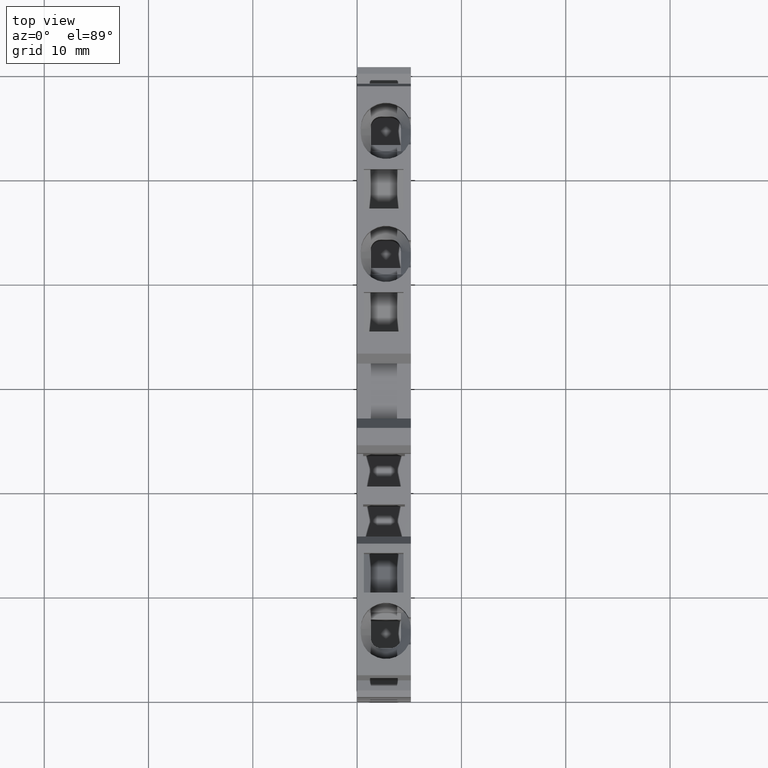
[diagram: clean part render]
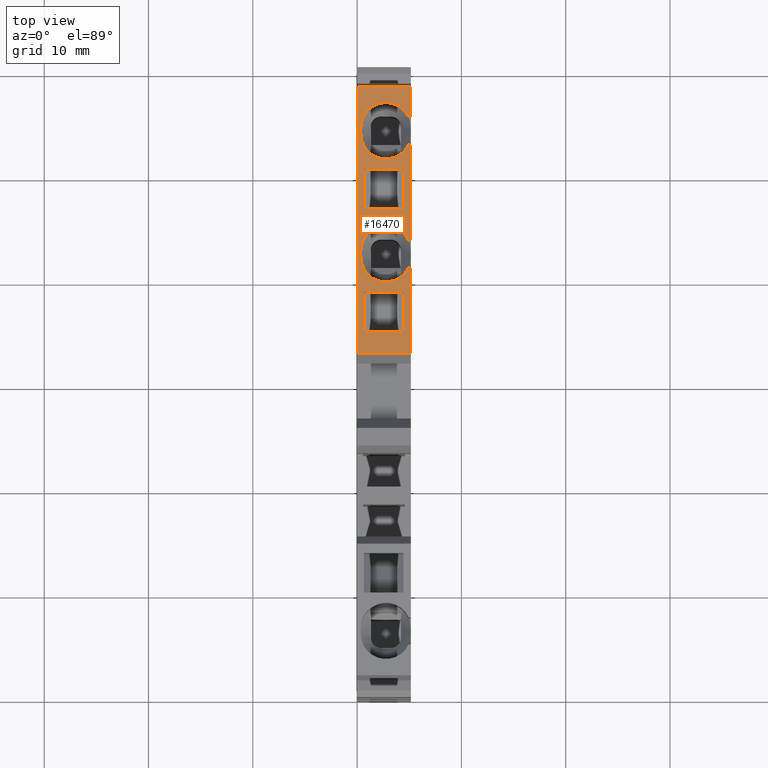
[diagram: same view with one face highlighted and labeled with its STEP entity id]
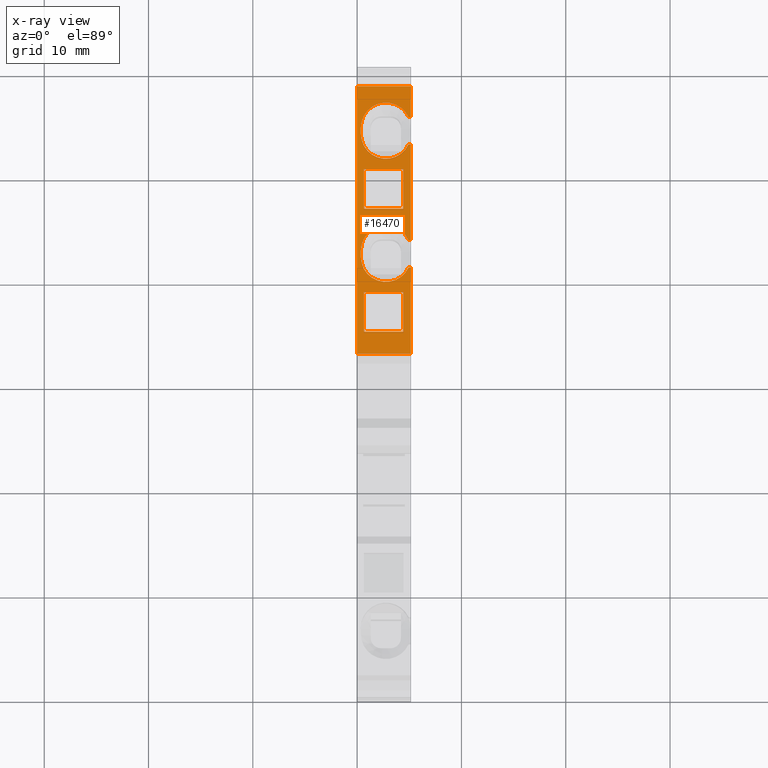
[diagram: x-ray of the same camera — body ghosted, the highlighted face saturated]
A machine part, top view. The second image highlights one B-rep face of the part: STEP entity #16470.
The next image is the same camera in x-ray: the body ghosted, the highlighted face saturated — about 0% of this face is hidden behind the body in this view.
In plain terms, the highlighted planar face has unit normal (0, 0, 1).
Its self-contained STEP definition (entity closure, byte-faithful):
#200=CARTESIAN_POINT('',(16.3321674513997,-9.15000000000321,
52.9700000000347));
#210=VERTEX_POINT('',#200);
#240=CARTESIAN_POINT('',(-30.6958559619301,-9.15000000000321,
52.9700000000335));
#250=DIRECTION('',(-1.,0.,-2.55698240358981E-14));
#260=VECTOR('',#250,1.);
#270=LINE('',#240,#260);
#280=CARTESIAN_POINT('',(12.5321672216741,-9.15000000000321,
52.9700000000346));
#290=VERTEX_POINT('',#280);
#300=EDGE_CURVE('',#210,#290,#270,.T.);
#11460=CARTESIAN_POINT('',(18.7071672216757,-9.1500000000032,53.67));
#11470=VERTEX_POINT('',#11460);
#11500=CARTESIAN_POINT('',(18.7071672216757,-9.14999999998433,53.67));
#11510=DIRECTION('',(-1.32730580468867E-25,1.13159598700756E-12,1.));
#11520=VECTOR('',#11510,1.);
#11530=LINE('',#11500,#11520);
#11540=CARTESIAN_POINT('',(18.7071672216758,-9.1500000000032,
53.4517424229272));
#11550=VERTEX_POINT('',#11540);
#11560=EDGE_CURVE('',#11550,#11470,#11530,.T.);
#14390=CARTESIAN_POINT('',(22.5369482988433,-9.15000000000321,
49.803985858166));
#14400=DIRECTION('',(0.,1.,-0.));
#14410=DIRECTION('',(-1.,0.,0.));
#14420=AXIS2_PLACEMENT_3D('',#14390,#14400,#14410);
#14430=PLANE('',#14420);
#14440=CARTESIAN_POINT('',(-30.6958559619301,-9.15000000000321,
49.1700000001247));
#14450=DIRECTION('',(-1.,0.,2.75113265502114E-12));
#14460=VECTOR('',#14450,1.);
#14470=LINE('',#14440,#14460);
#14480=CARTESIAN_POINT('',(28.1321677601177,-9.1500000000032,
49.1699999999986));
#14490=VERTEX_POINT('',#14480);
#14500=CARTESIAN_POINT('',(24.3321675303923,-9.1500000000032,
49.1699999999987));
#14510=VERTEX_POINT('',#14500);
#14520=EDGE_CURVE('',#14490,#14510,#14470,.T.);
#14530=ORIENTED_EDGE('',*,*,#14520,.F.);
#14540=CARTESIAN_POINT('',(24.3321675304046,-9.1500000000032,53.67));
#14550=DIRECTION('',(-2.75115697116647E-12,0.,-1.));
#14560=VECTOR('',#14550,1.);
#14570=LINE('',#14540,#14560);
#14580=CARTESIAN_POINT('',(24.3321672216741,-9.15000000000321,
52.9700000000338));
#14590=VERTEX_POINT('',#14580);
#14600=EDGE_CURVE('',#14590,#14510,#14570,.T.);
#14610=ORIENTED_EDGE('',*,*,#14600,.T.);
#14620=CARTESIAN_POINT('',(-30.6958559619301,-9.15000000000321,
52.9700000000324));
#14630=DIRECTION('',(-1.,0.,-2.55698240358981E-14));
#14640=VECTOR('',#14630,1.);
#14650=LINE('',#14620,#14640);
#14660=CARTESIAN_POINT('',(28.1321674513997,-9.15000000000321,
52.9700000000339));
#14670=VERTEX_POINT('',#14660);
#14680=EDGE_CURVE('',#14670,#14590,#14650,.T.);
#14690=ORIENTED_EDGE('',*,*,#14680,.T.);
#14700=CARTESIAN_POINT('',(28.1321674513997,-9.1499999999855,53.67));
#14710=DIRECTION('',(0.,6.94583279713799E-15,1.));
#14720=VECTOR('',#14710,1.);
#14730=LINE('',#14700,#14720);
#14740=EDGE_CURVE('',#14490,#14670,#14730,.T.);
#14750=ORIENTED_EDGE('',*,*,#14740,.T.);
#14760=EDGE_LOOP('',(#14750,#14690,#14610,#14530));
#14770=FACE_BOUND('',#14760,.T.);
#14780=CARTESIAN_POINT('',(16.3321674513997,-9.14999999998203,53.67));
#14790=DIRECTION('',(-2.22853205724936E-28,6.94583279713799E-15,1.));
#14800=VECTOR('',#14790,1.);
#14810=LINE('',#14780,#14800);
#14820=CARTESIAN_POINT('',(16.3321674513997,-9.15000000000321,
49.1699999999989));
#14830=VERTEX_POINT('',#14820);
#14840=EDGE_CURVE('',#14830,#210,#14810,.T.);
#14850=ORIENTED_EDGE('',*,*,#14840,.T.);
#14860=CARTESIAN_POINT('',(-30.6958559619301,-9.15000000000321,
49.170000000093));
#14870=DIRECTION('',(-1.,0.,2.75113265502114E-12));
#14880=VECTOR('',#14870,1.);
#14890=LINE('',#14860,#14880);
#14900=CARTESIAN_POINT('',(12.5321672216741,-9.15000000000321,
49.169999999999));
#14910=VERTEX_POINT('',#14900);
#14920=EDGE_CURVE('',#14830,#14910,#14890,.T.);
#14930=ORIENTED_EDGE('',*,*,#14920,.F.);
#14940=CARTESIAN_POINT('',(12.5321672216611,-9.1500000000032,53.67));
#14950=DIRECTION('',(-2.75115697116647E-12,0.,-1.));
#14960=VECTOR('',#14950,1.);
#14970=LINE('',#14940,#14960);
#14980=EDGE_CURVE('',#290,#14910,#14970,.T.);
#14990=ORIENTED_EDGE('',*,*,#14980,.T.);
#15000=ORIENTED_EDGE('',*,*,#300,.T.);
#15010=EDGE_LOOP('',(#15000,#14990,#14930,#14850));
#15020=FACE_BOUND('',#15010,.T.);
#15030=CARTESIAN_POINT('',(19.7071672216757,-9.15000000000257,51.27));
#15040=DIRECTION('',(1.17239551400417E-13,-1.,0.));
#15050=DIRECTION('',(-1.,-1.18335896637234E-13,0.));
#15060=AXIS2_PLACEMENT_3D('',#15030,#15040,#15050);
#15070=CIRCLE('',#15060,2.60000000000001);
#15080=CARTESIAN_POINT('',(17.1144192216756,-9.1500000000032,
51.464056199323));
#15090=VERTEX_POINT('',#15080);
#15100=CARTESIAN_POINT('',(17.1144192216756,-9.1500000000032,
51.0759438006769));
#15110=VERTEX_POINT('',#15100);
#15120=EDGE_CURVE('',#15090,#15110,#15070,.T.);
#15130=ORIENTED_EDGE('',*,*,#15120,.T.);
#15140=CARTESIAN_POINT('',(17.1144192216756,-9.15000000000321,
47.4879520538782));
#15150=DIRECTION('',(0.,0.,1.));
#15160=VECTOR('',#15150,1.);
#15170=LINE('',#15140,#15160);
#15180=EDGE_CURVE('',#15110,#15090,#15170,.T.);
#15190=ORIENTED_EDGE('',*,*,#15180,.T.);
#15200=EDGE_LOOP('',(#15190,#15130));
#15210=FACE_BOUND('',#15200,.T.);
#15220=CARTESIAN_POINT('',(-30.6958559619301,-9.15000000000321,48.52));
#15230=DIRECTION('',(1.,0.,0.));
#15240=VECTOR('',#15230,1.);
#15250=LINE('',#15220,#15240);
#15260=CARTESIAN_POINT('',(10.4418215966526,-9.15000000000316,48.52));
#15270=VERTEX_POINT('',#15260);
#15280=CARTESIAN_POINT('',(36.0719729923297,-9.15000000000321,48.52));
#15290=VERTEX_POINT('',#15280);
#15300=EDGE_CURVE('',#15270,#15290,#15250,.T.);
#15310=ORIENTED_EDGE('',*,*,#15300,.F.);
#15320=CARTESIAN_POINT('',(36.0719729923297,-9.1500000000032,53.67));
#15330=DIRECTION('',(0.,0.,1.));
#15340=VECTOR('',#15330,1.);
#15350=LINE('',#15320,#15340);
#15360=CARTESIAN_POINT('',(36.0719729923297,-9.15000000000321,53.67));
#15370=VERTEX_POINT('',#15360);
#15380=EDGE_CURVE('',#15290,#15370,#15350,.T.);
#15390=ORIENTED_EDGE('',*,*,#15380,.F.);
#15400=CARTESIAN_POINT('',(-30.6958559619301,-9.15000000000321,53.67));
#15410=DIRECTION('',(-1.,0.,0.));
#15420=VECTOR('',#15410,1.);
#15430=LINE('',#15400,#15420);
#15440=CARTESIAN_POINT('',(33.1071672216757,-9.15000000000321,53.67));
#15450=VERTEX_POINT('',#15440);
#15460=EDGE_CURVE('',#15370,#15450,#15430,.T.);
#15470=ORIENTED_EDGE('',*,*,#15460,.F.);
#15480=CARTESIAN_POINT('',(33.1071672216757,-9.14999999998016,53.67));
#15490=DIRECTION('',(1.32730580468867E-25,-1.13159598700756E-12,-1.));
#15500=VECTOR('',#15490,1.);
#15510=LINE('',#15480,#15500);
#15520=CARTESIAN_POINT('',(33.1071672216759,-9.1500000000032,
53.4517424229269));
#15530=VERTEX_POINT('',#15520);
#15540=EDGE_CURVE('',#15450,#15530,#15510,.T.);
#15550=ORIENTED_EDGE('',*,*,#15540,.F.);
#15560=CARTESIAN_POINT('',(32.1071672216754,-9.14999999998305,51.27));
#15570=DIRECTION('',(0.,1.,0.));
#15580=DIRECTION('',(1.,0.,0.));
#15590=AXIS2_PLACEMENT_3D('',#15560,#15570,#15580);
#15600=CIRCLE('',#15590,2.4);
#15610=CARTESIAN_POINT('',(32.1071672216754,-9.1500000000032,48.87));
#15620=VERTEX_POINT('',#15610);
#15630=EDGE_CURVE('',#15530,#15620,#15600,.T.);
#15640=ORIENTED_EDGE('',*,*,#15630,.F.);
#15650=CARTESIAN_POINT('',(-30.6958559619292,-9.14999999999617,
48.8699999999999));
#15660=DIRECTION('',(1.,1.65797930939959E-13,7.49400541621981E-16));
#15670=VECTOR('',#15660,1.);
#15680=LINE('',#15650,#15670);
#15690=CARTESIAN_POINT('',(31.5071672216758,-9.1500000000032,48.87));
#15700=VERTEX_POINT('',#15690);
#15710=EDGE_CURVE('',#15700,#15620,#15680,.T.);
#15720=ORIENTED_EDGE('',*,*,#15710,.T.);
#15730=CARTESIAN_POINT('',(31.5071672216757,-9.14999999998314,51.27));
#15740=DIRECTION('',(1.17239551400417E-13,-1.,0.));
#15750=DIRECTION('',(1.,1.17239551400417E-13,0.));
#15760=AXIS2_PLACEMENT_3D('',#15730,#15740,#15750);
#15770=CIRCLE('',#15760,2.4);
#15780=CARTESIAN_POINT('',(30.5071674767927,-9.15000000000332,
53.4517425398598));
#15790=VERTEX_POINT('',#15780);
#15800=EDGE_CURVE('',#15790,#15700,#15770,.T.);
#15810=ORIENTED_EDGE('',*,*,#15800,.T.);
#15820=CARTESIAN_POINT('',(30.5071672216757,-9.14999999998059,53.67));
#15830=DIRECTION('',(-1.32730580468867E-25,1.13159598700756E-12,1.));
#15840=VECTOR('',#15830,1.);
#15850=LINE('',#15820,#15840);
#15860=CARTESIAN_POINT('',(30.5071672216757,-9.15000000000328,53.67));
#15870=VERTEX_POINT('',#15860);
#15880=EDGE_CURVE('',#15790,#15870,#15850,.T.);
#15890=ORIENTED_EDGE('',*,*,#15880,.F.);
#15900=CARTESIAN_POINT('',(-30.7553307158937,-9.15000000000321,53.67));
#15910=DIRECTION('',(-1.,0.,0.));
#15920=VECTOR('',#15910,1.);
#15930=LINE('',#15900,#15920);
#15940=CARTESIAN_POINT('',(21.3071672216757,-9.15000000000321,53.67));
#15950=VERTEX_POINT('',#15940);
#15960=EDGE_CURVE('',#15870,#15950,#15930,.T.);
#15970=ORIENTED_EDGE('',*,*,#15960,.F.);
#15980=CARTESIAN_POINT('',(21.3071672216757,-9.1499999999839,53.67));
#15990=DIRECTION('',(1.32730580468867E-25,-1.13159598700756E-12,-1.));
#16000=VECTOR('',#15990,1.);
#16010=LINE('',#15980,#16000);
#16020=CARTESIAN_POINT('',(21.3071672216642,-9.1500000000032,
53.4517424229323));
#16030=VERTEX_POINT('',#16020);
#16040=EDGE_CURVE('',#15950,#16030,#16010,.T.);
#16050=ORIENTED_EDGE('',*,*,#16040,.F.);
#16060=CARTESIAN_POINT('',(20.3071672216754,-9.14999999998678,51.27));
#16070=DIRECTION('',(0.,1.,0.));
#16080=DIRECTION('',(1.,0.,0.));
#16090=AXIS2_PLACEMENT_3D('',#16060,#16070,#16080);
#16100=CIRCLE('',#16090,2.4);
#16110=CARTESIAN_POINT('',(20.3071672216754,-9.15000000000321,48.87));
#16120=VERTEX_POINT('',#16110);
#16130=EDGE_CURVE('',#16030,#16120,#16100,.T.);
#16140=ORIENTED_EDGE('',*,*,#16130,.F.);
#16150=CARTESIAN_POINT('',(-30.6958559619294,-9.14999999999795,
48.8699999999999));
#16160=DIRECTION('',(1.,1.65797930939959E-13,7.49400541621981E-16));
#16170=VECTOR('',#16160,1.);
#16180=LINE('',#16150,#16170);
#16190=CARTESIAN_POINT('',(19.7071672216757,-9.15000000000321,48.87));
#16200=VERTEX_POINT('',#16190);
#16210=EDGE_CURVE('',#16200,#16120,#16180,.T.);
#16220=ORIENTED_EDGE('',*,*,#16210,.T.);
#16230=CARTESIAN_POINT('',(19.7071672216757,-9.14999999998687,51.27));
#16240=DIRECTION('',(0.,-1.,0.));
#16250=DIRECTION('',(1.,0.,0.));
#16260=AXIS2_PLACEMENT_3D('',#16230,#16240,#16250);
#16270=CIRCLE('',#16260,2.4);
#16280=EDGE_CURVE('',#11550,#16200,#16270,.T.);
#16290=ORIENTED_EDGE('',*,*,#16280,.T.);
#16300=ORIENTED_EDGE('',*,*,#11560,.F.);
#16310=CARTESIAN_POINT('',(-30.6958559619301,-9.15000000000321,53.67));
#16320=DIRECTION('',(1.,0.,0.));
#16330=VECTOR('',#16320,1.);
#16340=LINE('',#16310,#16330);
#16350=CARTESIAN_POINT('',(10.4418215966526,-9.15000000000316,53.67));
#16360=VERTEX_POINT('',#16350);
#16370=EDGE_CURVE('',#16360,#11470,#16340,.T.);
#16380=ORIENTED_EDGE('',*,*,#16370,.T.);
#16390=CARTESIAN_POINT('',(10.4418215966525,-9.15000000000321,53.67));
#16400=DIRECTION('',(0.,0.,-1.));
#16410=VECTOR('',#16400,1.);
#16420=LINE('',#16390,#16410);
#16430=EDGE_CURVE('',#16360,#15270,#16420,.T.);
#16440=ORIENTED_EDGE('',*,*,#16430,.F.);
#16450=EDGE_LOOP('',(#16440,#16380,#16300,#16290,#16220,#16140,#16050,
#15970,#15890,#15810,#15720,#15640,#15550,#15470,#15390,#15310));
#16460=FACE_OUTER_BOUND('',#16450,.T.);
#16470=ADVANCED_FACE('',(#14770,#15020,#15210,#16460),#14430,.T.);